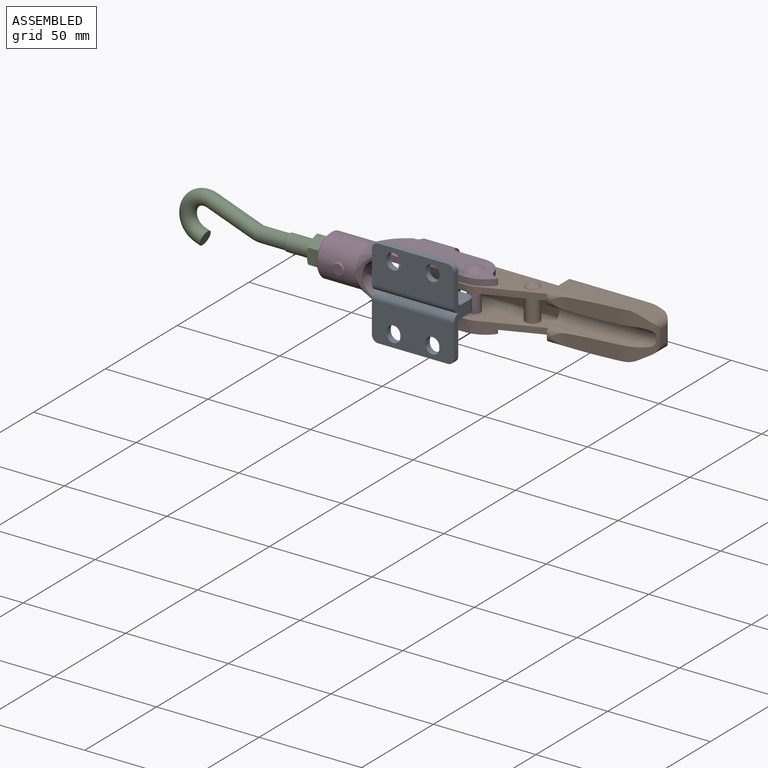
[diagram: assembled view]
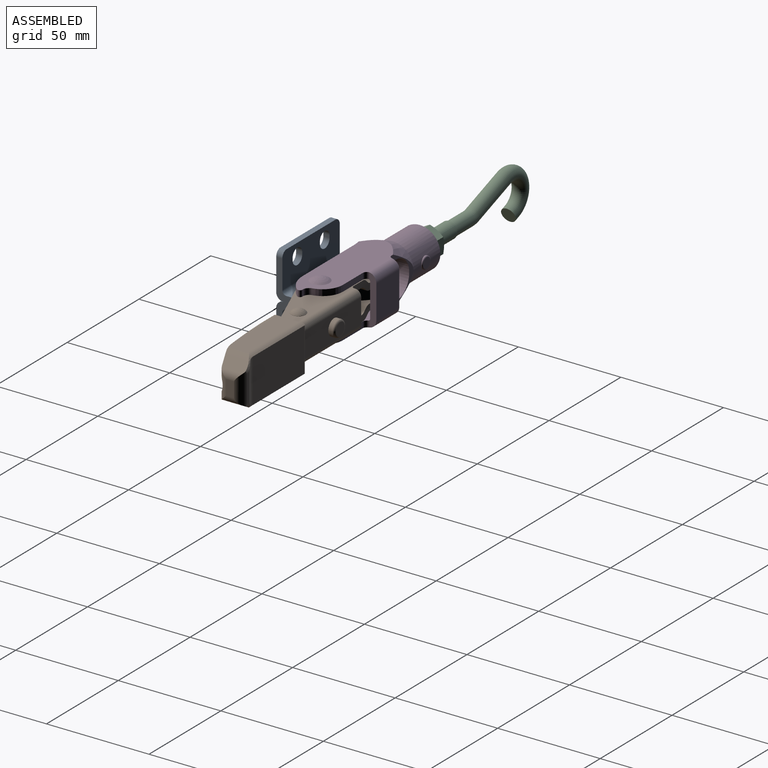
[diagram: assembled view, second angle]
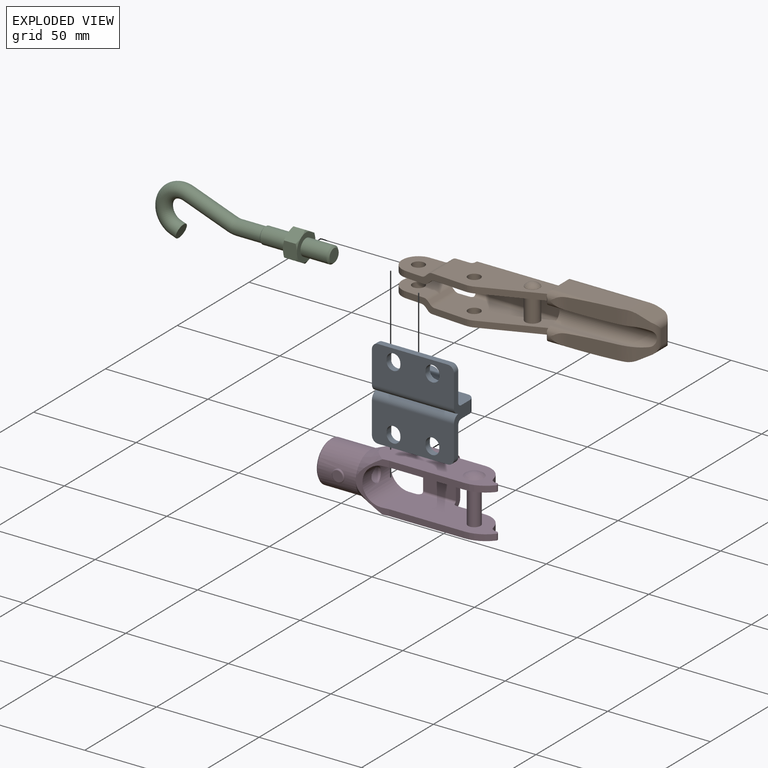
[diagram: exploded view]
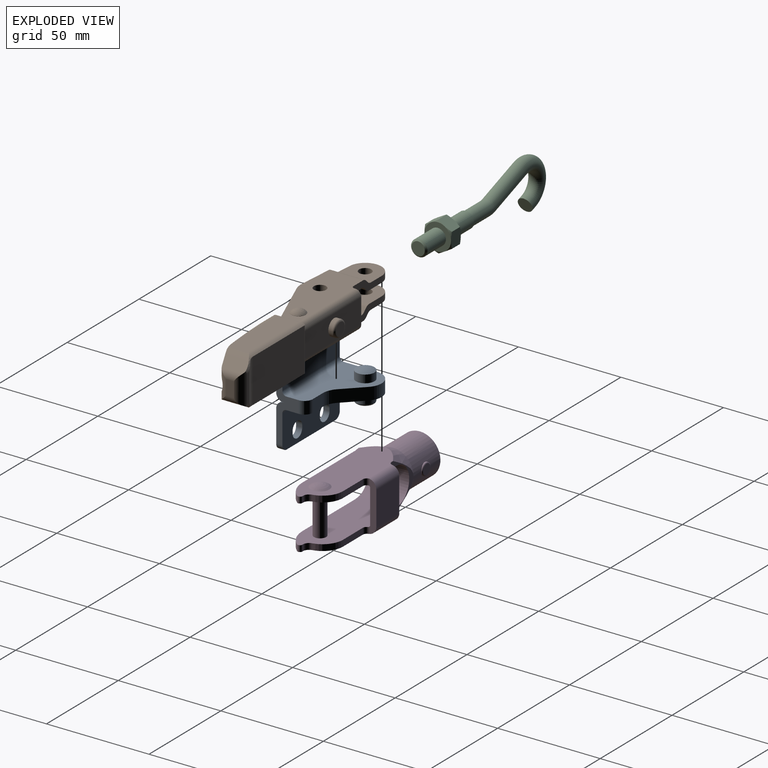
[diagram: exploded view, second angle]
ASSEMBLY  parts=4 mates=3
PART A: 44 faces, bbox 40x29x44 mm
  f0: plane 7x7mm, normal (0,0,-1), area 38.5mm2, adj f1
  f1: torus R=3.5mm, axis (0,0,1), area 40.8mm2, adj f0,f2
  f2: cylinder r=4.5mm len=9mm, axis (0,0,-1), area 93.3mm2, adj f1,f27
  f3: plane 34x3mm, normal (0,0,1), area 102mm2, adj f10,f22,f40,f41
  f4: plane 34x3mm, normal (0,0,-1), area 102mm2, adj f12,f25,f42,f43
  f5: plane 9.02x9.02mm, normal (0.71,0.71,0), area 76.5mm2, adj f6,f13,f20,f27
  f6: cylinder r=9mm len=6.36mm, axis (0,0,1), area 42.4mm2, adj f5,f7,f20,f27
  f7: plane 6.96x6mm, normal (0,1,0), area 41.8mm2, adj f6,f8,f20,f27
  f8: cylinder r=4mm len=6mm, axis (0,0,1), area 37.7mm2, adj f7,f9,f20,f27
  f9: plane 38x11mm, normal (1,0,0), area 158.5mm2, adj f8,f10,f12,f20,f21,f22,f23,f24
  f10: plane 40x18.5mm, normal (0,-1,0), area 652.2mm2, adj f3,f9,f11,f23,f28,f29,f30,f31
  f11: plane 38x21mm, normal (-1,0,0), area 218.5mm2, adj f10,f12,f13,f20,f21,f22,f23,f24
  f12: plane 40x18.5mm, normal (0,-1,0), area 652.2mm2, adj f4,f9,f11,f14,f15,f16,f17,f24
  f13: cylinder r=8mm len=13.66mm, axis (0,0,1), area 113.1mm2, adj f5,f11,f20,f27
  f14: plane 3x1mm, normal (-1,0,0), area 3mm2, adj f12,f15,f16,f25
  f15: cylinder r=3.35mm len=6.7mm, axis (0,1,0), area 31.6mm2, adj f12,f14,f17,f25
  f16: cylinder r=3.35mm len=6.7mm, axis (0,1,0), area 31.6mm2, adj f12,f14,f17,f25
  f17: plane 3x1mm, normal (1,0,0), area 3mm2, adj f12,f15,f16,f25
  f18: revolved ~9x9mm, area 67.8mm2, adj f19
  f19: cylinder r=4.5mm len=9mm, axis (0,0,-1), area 108.9mm2, adj f18,f20
  f20: plane 40x24mm, normal (0,0,1), area 576mm2, adj f5,f6,f7,f8,f9,f11,f13,f19
  f21: cylinder r=2mm len=40mm, axis (1,0,0), area 125.7mm2, adj f9,f11,f20,f22
  f22: plane 40x17mm, normal (0,1,0), area 592.2mm2, adj f3,f9,f11,f21,f28,f29,f30,f31
  f23: cylinder r=3.5mm len=40mm, axis (1,0,0), area 219.9mm2, adj f9,f10,f11,f24
  f24: cylinder r=3.5mm len=40mm, axis (1,0,0), area 219.9mm2, adj f9,f11,f12,f23
  f25: plane 40x17mm, normal (0,1,0), area 592.2mm2, adj f4,f9,f11,f14,f15,f16,f17,f26
  f26: cylinder r=2mm len=40mm, axis (1,0,0), area 125.7mm2, adj f9,f11,f25,f27
  f27: plane 40x24mm, normal (0,0,-1), area 576mm2, adj f2,f5,f6,f7,f8,f9,f11,f13
  f28: cylinder r=3.35mm len=6.7mm, axis (0,1,0), area 31.6mm2, adj f10,f22,f30,f32
  f29: plane 3x1mm, normal (1,0,0), area 3mm2, adj f10,f22,f37,f39
  f30: plane 3x1mm, normal (-1,0,0), area 3mm2, adj f10,f22,f28,f31
  f31: cylinder r=3.35mm len=6.7mm, axis (0,1,0), area 31.6mm2, adj f10,f22,f30,f32
  f32: plane 3x1mm, normal (1,0,0), area 3mm2, adj f10,f22,f28,f31
  f33: cylinder r=3.35mm len=6.7mm, axis (0,1,0), area 31.6mm2, adj f12,f25,f34,f36
  f34: plane 3x1mm, normal (-1,0,0), area 3mm2, adj f12,f25,f33,f35
  f35: cylinder r=3.35mm len=6.7mm, axis (0,1,0), area 31.6mm2, adj f12,f25,f34,f36
  f36: plane 3x1mm, normal (1,0,0), area 3mm2, adj f12,f25,f33,f35
  f37: cylinder r=3.35mm len=6.7mm, axis (0,1,0), area 31.6mm2, adj f10,f22,f29,f38
  f38: plane 3x1mm, normal (-1,0,0), area 3mm2, adj f10,f22,f37,f39
  f39: cylinder r=3.35mm len=6.7mm, axis (0,1,0), area 31.6mm2, adj f10,f22,f29,f38
  f40: cylinder r=3mm len=3mm, axis (0,1,0), area 14.1mm2, adj f3,f10,f11,f22
  f41: cylinder r=3mm len=3mm, axis (0,1,0), area 14.1mm2, adj f3,f9,f10,f22
  f42: cylinder r=3mm len=3mm, axis (0,1,0), area 14.1mm2, adj f4,f9,f12,f25
  f43: cylinder r=3mm len=3mm, axis (0,1,0), area 14.1mm2, adj f4,f11,f12,f25
PART B: 93 faces, bbox 123.2x31.7x27 mm
  f0: cylinder r=1.5mm len=42.77mm, axis (-1,0,0), area 99.8mm2, adj f1,f16,f37,f63,f65
  f1: plane 44.2x18.45mm, normal (0,0,-1), area 553.4mm2, adj f0,f16,f20,f30,f44,f56,f62,f65
  f2: cylinder r=5mm len=44.76mm, axis (1,0,0), area 119.7mm2, adj f3,f41,f66,f67,f68,f69,f70,f71
  f3: cylinder r=10mm len=13.12mm, axis (0,1,0), area 55.1mm2, adj f2,f41,f71,f73,f75
  f4: cylinder r=26.55mm len=7.73mm, axis (0,0,1), area 53.8mm2, adj f5,f23,f40,f74,f77,f81
  f5: cylinder r=4.5mm len=47.47mm, axis (1,0,0), area 634.4mm2, adj f4,f6,f65,f73,f74,f75,f80,f81
  f6: cylinder r=4.51mm len=15.14mm, axis (0,0,1), area 42.4mm2, adj f5,f7,f21,f22,f71,f72,f73,f74
  f7: cylinder r=4mm len=10.25mm, axis (0,1,0), area 30mm2, adj f6,f22,f70,f72
  f8: cylinder r=3.5mm len=30.01mm, axis (1,0,0), area 108.7mm2, adj f9,f11,f41,f65,f76,f79,f80,f89
  f9: cylinder r=20mm len=5.8mm, axis (0,0,1), area 22.3mm2, adj f8,f76,f79
  f10: cylinder r=3.5mm len=30.01mm, axis (1,0,0), area 108.7mm2, adj f24,f38,f39,f40,f65,f77,f78,f81
  f11: cylinder r=1mm len=4.85mm, axis (0,0,1), area 0mm2, adj f8,f65
  f12: plane 29.02x11.63mm, normal (0.37,-0.93,0), area 93.8mm2, adj f13,f35,f46,f65
  f13: cylinder r=10mm len=4.46mm, axis (0,0,1), area 13.6mm2, adj f12,f14,f35,f46
  f14: plane 30.33x6.01mm, normal (-0.07,-1,0), area 94.8mm2, adj f13,f15,f35,f45,f46,f47,f48,f49
  f15: cylinder r=7.94mm len=15.86mm, axis (0,0,1), area 72.3mm2, adj f14,f18,f50,f51
  f16: cylinder r=1.5mm len=3.56mm, axis (0,0,1), area 7.4mm2, adj f0,f1,f20,f63,f64
  f17: cylinder r=7.94mm len=15.86mm, axis (0,0,1), area 72.3mm2, adj f20,f85,f86,f91
  f18: plane 19.76x6mm, normal (0,1,0), area 62.9mm2, adj f15,f19,f35,f45,f46,f47,f48,f49
  f19: cylinder r=1.5mm len=3.56mm, axis (0,0,1), area 7.4mm2, adj f18,f35,f36,f46,f63
  f20: plane 19.76x6mm, normal (0,1,0), area 62.9mm2, adj f1,f16,f17,f56,f57,f58,f59,f60
  f21: cylinder r=4mm len=10.25mm, axis (0,1,0), area 30mm2, adj f6,f22,f70,f71
  f22: plane 7.12x4.02mm, normal (1,0,0), area 28.6mm2, adj f6,f7,f21,f70
  f23: cylinder r=10mm len=13.12mm, axis (0,1,0), area 55.1mm2, adj f4,f40,f72,f74,f83
  f24: cylinder r=1mm len=15.19mm, axis (0,1,0), area 20.6mm2, adj f10,f40,f65,f66,f83
  f25: torus R=3mm, axis (0,-1,0), area 35.9mm2, adj f26,f27
  f26: cylinder r=4mm len=8mm, axis (0,1,0), area 51.1mm2, adj f25,f33
  f27: plane 6x6mm, normal (0,1,0), area 28.3mm2, adj f25
  f28: plane 7x7mm, normal (0,0,-1), area 38.5mm2, adj f29
  f29: cone r=5.05mm half-angle=48deg, axis (0,0,1), area 21.6mm2, adj f28,f46
  f30: cylinder r=3.5mm len=12mm, axis (0,0,1), area 263.9mm2, adj f1,f35
  f31: sphere r=4.42mm, area 47.8mm2, adj f92
  f32: cylinder r=3mm len=42.21mm, axis (-1,0,0), area 198.9mm2, adj f33,f63,f64,f65
  f33: plane 42.21x12mm, normal (0,1,0), area 456.2mm2, adj f26,f32,f34,f63,f65
  f34: cylinder r=3mm len=42.21mm, axis (-1,0,0), area 198.9mm2, adj f33,f46,f63,f65
  f35: plane 44.2x18.45mm, normal (0,0,1), area 553.4mm2, adj f12,f13,f14,f18,f19,f30,f36,f43
  f36: cylinder r=1.5mm len=42.77mm, axis (-1,0,0), area 99.8mm2, adj f19,f35,f37,f63,f65
  f37: plane 42.21x9mm, normal (0,-1,0), area 379.9mm2, adj f0,f36,f63,f65
  f38: cylinder r=1mm len=4.85mm, axis (0,0,1), area 0mm2, adj f10,f65
  f39: cylinder r=10.11mm len=3.87mm, axis (0,0,1), area 6.3mm2, adj f10,f78
  f40: plane 34.6x10.5mm, normal (0,0,-1), area 361.5mm2, adj f4,f10,f23,f24,f77,f83
  f41: plane 34.6x10.5mm, normal (0,0,1), area 361.5mm2, adj f2,f3,f8,f75,f76,f89
  f42: cylinder r=3mm len=6mm, axis (0,0,1), area 56.5mm2, adj f50,f51
  f43: cylinder r=3mm len=6mm, axis (0,0,1), area 56.5mm2, adj f35,f46
  f44: cylinder r=3mm len=6mm, axis (0,0,1), area 56.5mm2, adj f1,f64
  f45: cylinder r=2mm len=17.3mm, axis (0,1,0), area 0.2mm2, adj f14,f18,f35,f55
  f46: plane 50.31x19.95mm, normal (0,0,-1), area 705.3mm2, adj f12,f13,f14,f18,f19,f29,f34,f43
  f47: cylinder r=3mm len=16.85mm, axis (0,1,0), area 38.4mm2, adj f14,f18,f46,f48
  f48: plane 16.7x1.4mm, normal (-0.69,0,-0.72), area 32.3mm2, adj f14,f18,f47,f49
  f49: cylinder r=3mm len=16.59mm, axis (0,1,0), area 37.8mm2, adj f14,f18,f48,f50
  f50: plane 16.44x15.29mm, normal (0,0,-1), area 189.7mm2, adj f14,f15,f18,f42,f49
  f51: plane 16.53x16.5mm, normal (0,0,1), area 209.5mm2, adj f14,f15,f18,f42,f52
  f52: cylinder r=3mm len=16.68mm, axis (0,1,0), area 38mm2, adj f14,f18,f51,f53
  f53: plane 16.79x1.4mm, normal (0.69,0,0.72), area 32.5mm2, adj f14,f18,f52,f54
  f54: cylinder r=3mm len=16.94mm, axis (0,1,0), area 38.6mm2, adj f14,f18,f53,f55
  f55: plane 17.3x4.9mm, normal (0,0,1), area 83.9mm2, adj f14,f18,f45,f54
  f56: cylinder r=2mm len=17.3mm, axis (0,1,0), area 0.2mm2, adj f1,f20,f57,f91
  f57: plane 17.3x4.9mm, normal (0,0,-1), area 83.9mm2, adj f20,f56,f58,f91
  f58: cylinder r=3mm len=16.94mm, axis (0,1,0), area 38.6mm2, adj f20,f57,f59,f91
  f59: plane 16.79x1.4mm, normal (0.69,0,-0.72), area 32.5mm2, adj f20,f58,f60,f91
  f60: cylinder r=3mm len=16.68mm, axis (0,1,0), area 38mm2, adj f20,f59,f85,f91
  f61: cylinder r=3mm len=16.85mm, axis (0,1,0), area 38.4mm2, adj f20,f64,f87,f91
  f62: plane 29.02x11.63mm, normal (0.37,-0.93,0), area 93.8mm2, adj f1,f64,f65,f90
  f63: plane 18x3.33mm, normal (-1,0,0), area 52.7mm2, adj f0,f16,f19,f32,f33,f34,f36,f37
  f64: plane 50.31x19.95mm, normal (0,0,1), area 721.3mm2, adj f16,f20,f32,f44,f61,f62,f63,f65
  f65: plane 25x18.8mm, normal (-1,0,0), area 144.3mm2, adj f0,f1,f5,f8,f10,f11,f12,f24
  f66: cylinder r=1mm len=21.94mm, axis (0,0,1), area 33.9mm2, adj f2,f24,f65,f67,f83,f89
  f67: plane 35.82x21.32mm, normal (0,1,0), area 763.6mm2, adj f2,f66,f68,f83
  f68: cylinder r=6mm len=21.32mm, axis (0,0,1), area 79.9mm2, adj f2,f67,f69,f83
  f69: cylinder r=4.8mm len=18.88mm, axis (0,0,1), area 38.5mm2, adj f2,f68,f82,f83
  f70: cylinder r=4.8mm len=15.44mm, axis (0,0,1), area 66mm2, adj f2,f7,f21,f22,f71,f72,f82,f83
  f71: plane 13.33x5.89mm, normal (0.5,0,0.87), area 72.7mm2, adj f2,f3,f6,f21,f70,f73
  f72: plane 13.33x5.89mm, normal (0.5,0,-0.87), area 72.7mm2, adj f6,f7,f23,f70,f74,f83
  f73: plane 7.06x5.46mm, normal (0.34,-0.94,0), area 27.2mm2, adj f3,f5,f6,f71,f75
  f74: plane 7.06x5.46mm, normal (0.34,-0.94,0), area 27.2mm2, adj f4,f5,f6,f23,f72
  f75: cylinder r=26.55mm len=7.73mm, axis (0,0,1), area 53.8mm2, adj f3,f5,f41,f73,f76,f80
  f76: plane 22.88x7mm, normal (0.09,-1,0), area 152.9mm2, adj f8,f9,f41,f75,f80
  f77: plane 22.88x7mm, normal (0.09,-1,0), area 152.9mm2, adj f4,f10,f40,f78,f81
  f78: cylinder r=20mm len=5.8mm, axis (0,0,1), area 22.3mm2, adj f10,f39,f77
  f79: cylinder r=10.11mm len=3.87mm, axis (0,0,1), area 6.3mm2, adj f8,f9
  f80: plane 38.18x1.5mm, normal (0,0,-1), area 52.7mm2, adj f5,f8,f65,f75,f76
  f81: plane 38.18x1.5mm, normal (0,0,1), area 52.7mm2, adj f4,f5,f10,f65,f77
  f82: plane 13x1.52mm, normal (0,1,0), area 19.8mm2, adj f2,f69,f70,f83
  f83: cylinder r=5mm len=44.76mm, axis (1,0,0), area 119.7mm2, adj f23,f24,f40,f66,f67,f68,f69,f70
  f84: cylinder r=3mm len=6mm, axis (0,0,1), area 56.5mm2, adj f85,f86
  f85: plane 16.53x16.5mm, normal (0,0,-1), area 209.5mm2, adj f17,f20,f60,f84,f91
  f86: plane 16.44x15.29mm, normal (0,0,1), area 189.7mm2, adj f17,f20,f84,f88,f91
  f87: plane 16.7x1.4mm, normal (-0.69,0,0.72), area 32.3mm2, adj f20,f61,f88,f91
  f88: cylinder r=3mm len=16.59mm, axis (0,1,0), area 37.8mm2, adj f20,f86,f87,f91
  f89: cylinder r=1mm len=15.19mm, axis (0,1,0), area 20.6mm2, adj f2,f8,f41,f65,f66
  f90: cylinder r=10mm len=4.46mm, axis (0,0,1), area 13.6mm2, adj f1,f62,f64,f91
  f91: plane 30.33x6.01mm, normal (-0.07,-1,0), area 94.8mm2, adj f1,f17,f56,f57,f58,f59,f60,f61
  f92: cylinder r=3.5mm len=7mm, axis (0,0,1), area 2.2mm2, adj f31,f64
PART C: 31 faces, bbox 88x26.7x15.6 mm
  f0: plane 8.12x7.42mm, normal (0,0,-1), area 48mm2, adj f1,f5,f8,f11,f20,f21
  f1: plane 7.42x7.12mm, normal (0,-0.87,-0.5), area 48mm2, adj f0,f2,f8,f10,f16,f21
  f2: cone r=8.64mm half-angle=60deg, axis (-1,0,0), area 4.2mm2, adj f1,f16,f18
  f3: plane 8.12x7.42mm, normal (0,0,1), area 48.1mm2, adj f4,f6,f16,f19,f23,f30
  f4: plane 7.42x7.12mm, normal (0,0.87,0.5), area 48.1mm2, adj f3,f5,f6,f7,f17,f19
  f5: plane 7.42x7.12mm, normal (0,0.87,-0.5), area 48.1mm2, adj f0,f4,f7,f11,f17,f20
  f6: cone r=6.5mm half-angle=60deg, axis (1,0,0), area 4.2mm2, adj f3,f4,f15
  f7: cone r=6.5mm half-angle=60deg, axis (1,0,0), area 4.2mm2, adj f4,f5,f15
  f8: cone r=6.5mm half-angle=60deg, axis (1,0,0), area 4.2mm2, adj f0,f1,f15
  f9: cylinder r=4mm len=12.83mm, axis (-1,0,0), area 322.5mm2, adj f12,f15
  f10: cone r=6.5mm half-angle=60deg, axis (1,0,0), area 4.2mm2, adj f1,f15,f16
  f11: cone r=6.5mm half-angle=60deg, axis (1,0,0), area 4.2mm2, adj f0,f5,f15
  f12: cone r=3.23mm half-angle=45deg, axis (1,0,0), area 15.2mm2, adj f9,f29
  f13: cone r=4mm half-angle=45deg, axis (-1,0,0), area 24.6mm2, adj f14,f22
  f14: plane 6.47x6.47mm, normal (1,0,0), area 32.8mm2, adj f13
  f15: plane 13x13mm, normal (-1,0,0), area 82.5mm2, adj f6,f7,f8,f9,f10,f11,f30
  f16: plane 7.42x7.12mm, normal (0,-0.87,0.5), area 48.1mm2, adj f1,f2,f3,f10,f23,f30
  f17: cone r=8.64mm half-angle=60deg, axis (-1,0,0), area 4.2mm2, adj f4,f5,f18
  f18: plane 13x13mm, normal (1,0,0), area 82.5mm2, adj f2,f17,f19,f20,f21,f22,f23
  f19: cone r=8.64mm half-angle=60deg, axis (-1,0,0), area 4.2mm2, adj f3,f4,f18
  f20: cone r=8.64mm half-angle=60deg, axis (-1,0,0), area 4.2mm2, adj f0,f5,f18
  f21: cone r=8.64mm half-angle=60deg, axis (-1,0,0), area 4.2mm2, adj f0,f1,f18
  f22: cylinder r=4mm len=12.83mm, axis (-1,0,0), area 322.5mm2, adj f13,f18
  f23: cone r=8.64mm half-angle=60deg, axis (-1,0,0), area 4.2mm2, adj f3,f16,f18
  f24: torus R=8.87mm, axis (0,0,1), area 68.7mm2, adj f25,f29
  f25: cylinder r=3.53mm len=24.05mm, axis (0.94,-0.34,0), area 511.1mm2, adj f24,f26
  f26: torus R=8.87mm, axis (0,0,-1), area 618.4mm2, adj f25,f28
  f27: plane 7.07x6.64mm, normal (0.94,-0.34,0), area 39.2mm2, adj f28
  f28: cylinder r=3.53mm len=7.55mm, axis (0.94,-0.34,0), area 59.2mm2, adj f26,f27
  f29: cylinder r=3.53mm len=12.66mm, axis (1,0,0), area 280.1mm2, adj f12,f24
  f30: cone r=6.5mm half-angle=60deg, axis (1,0,0), area 4.2mm2, adj f3,f15,f16
PART D: 55 faces, bbox 83.4x32.1x32.1 mm
  f0: cone r=3.32mm half-angle=45deg, axis (1,0,0), area 0mm2, adj f1,f54
  f1: cylinder r=3.32mm len=22.54mm, axis (-1,0,0), area 452.7mm2, adj f0,f2,f50,f51,f52,f53,f54
  f2: plane 6.68x0.4mm, normal (1,0,0), area 2.7mm2, adj f1,f3,f51,f54
  f3: plane 24.4x15.3mm, normal (0,1,0), area 55.1mm2, adj f2,f4,f28,f30,f42,f43,f46,f47
  f4: cylinder r=2mm len=3.4mm, axis (0,0,1), area 9.6mm2, adj f3,f5,f26,f27,f28,f49
  f5: cylinder r=4mm len=16.33mm, axis (1,0,0), area 100.7mm2, adj f4,f6,f24,f25,f26,f28
  f6: plane 16.4x16mm, normal (0,1,0), area 262.4mm2, adj f5,f7,f24,f26
  f7: cylinder r=4mm len=16.33mm, axis (1,0,0), area 100.7mm2, adj f6,f8,f24,f26,f43,f46
  f8: cylinder r=2mm len=3.4mm, axis (0,0,1), area 9.6mm2, adj f7,f9,f11,f24,f43,f47
  f9: cylinder r=1mm len=16.33mm, axis (1,0,0), area 25.3mm2, adj f8,f10,f24,f26,f46,f47
  f10: plane 16.4x16mm, normal (0,-1,0), area 262.4mm2, adj f9,f24,f26,f27
  f11: plane 13.72x3mm, normal (0,1,0), area 41.2mm2, adj f8,f12,f43,f47
  f12: cylinder r=10mm len=9.84mm, axis (0,0,1), area 41.7mm2, adj f11,f13,f43,f47
  f13: cylinder r=3mm len=3.23mm, axis (0,0,1), area 13.2mm2, adj f12,f14,f43,f47
  f14: cylinder r=1.2mm len=3mm, axis (0,0,1), area 8.5mm2, adj f13,f15,f43,f47
  f15: cylinder r=15mm len=11.55mm, axis (0,0,1), area 39.6mm2, adj f14,f16,f43,f47
  f16: plane 36.77x3mm, normal (0,-1,0), area 110.3mm2, adj f15,f17,f43,f47
  f17: plane 24.91x15.31mm, normal (0.13,-0.99,0), area 77.9mm2, adj f16,f18,f28,f30,f42,f43,f47,f49
  f18: plane 36.77x3mm, normal (0,-1,0), area 110.3mm2, adj f17,f19,f28,f49
  f19: cylinder r=15mm len=11.55mm, axis (0,0,1), area 39.6mm2, adj f18,f20,f28,f49
  f20: cylinder r=1.2mm len=3mm, axis (0,0,1), area 8.5mm2, adj f19,f21,f28,f49
  f21: cylinder r=3mm len=3.23mm, axis (0,0,1), area 13.2mm2, adj f20,f22,f28,f49
  f22: cylinder r=10mm len=9.84mm, axis (0,0,1), area 41.7mm2, adj f21,f23,f28,f49
  f23: plane 13.72x3mm, normal (0,1,0), area 41.2mm2, adj f22,f25,f28,f49
  f24: plane 24.24x3.2mm, normal (1,0,0), area 67.8mm2, adj f5,f6,f7,f8,f9,f10,f25,f27
  f25: cylinder r=2mm len=3.4mm, axis (0,0,1), area 9.6mm2, adj f5,f23,f24,f27,f28,f49
  f26: plane 24.24x3.2mm, normal (-1,0,0), area 67.8mm2, adj f4,f5,f6,f7,f9,f10,f27,f46
  f27: cylinder r=1mm len=16.33mm, axis (1,0,0), area 25.3mm2, adj f4,f10,f24,f25,f26,f49
  f28: plane 57.99x19.6mm, normal (0,0,1), area 864mm2, adj f3,f4,f5,f17,f18,f19,f20,f21
  f29: sphere r=7.8mm, area 73.5mm2, adj f28
  f30: cone r=10mm half-angle=22.1deg, axis (1,0,0), area 213mm2, adj f3,f17,f28,f31
  f31: cylinder r=10mm len=20mm, axis (-1,0,0), area 1121.1mm2, adj f30,f32,f34,f35,f36,f37,f39,f40
  f32: torus R=2.5mm, axis (0,-1,0), area 13.9mm2, adj f31,f33,f34,f35
  f33: plane 5x5mm, normal (0,1,0), area 19.6mm2, adj f32
  f34: cylinder r=3mm len=3mm, axis (0,1,0), area 0mm2, adj f31,f32
  f35: cylinder r=3mm len=6mm, axis (0,1,0), area 0mm2, adj f31,f32
  f36: cylinder r=3mm len=3mm, axis (0,1,0), area 0mm2, adj f31,f37
  f37: torus R=2.5mm, axis (0,-1,0), area 13.9mm2, adj f31,f36,f38,f39
  f38: plane 5x5mm, normal (0,-1,0), area 19.6mm2, adj f37
  f39: cylinder r=3mm len=6mm, axis (0,1,0), area 0mm2, adj f31,f37
  f40: cone r=9.25mm half-angle=45deg, axis (1,0,0), area 64.1mm2, adj f31,f41
  f41: plane 18.5x18.5mm, normal (-1,0,0), area 218.5mm2, adj f40,f53
  f42: cone r=10mm half-angle=22.1deg, axis (1,0,0), area 213mm2, adj f3,f17,f31,f43
  f43: plane 57.99x19.6mm, normal (0,0,-1), area 883.8mm2, adj f3,f7,f8,f11,f12,f13,f14,f15
  f44: torus R=0.88mm, axis (0,0,1), area 41mm2, adj f43,f45
  f45: plane 3.52x3.52mm, normal (0,0,-1), area 9.7mm2, adj f44
  f46: cylinder r=2mm len=3.4mm, axis (0,0,1), area 9.6mm2, adj f3,f7,f9,f26,f43,f47
  f47: plane 51.4x19.58mm, normal (0,0,1), area 830.8mm2, adj f3,f8,f9,f11,f12,f13,f14,f15
  f48: cylinder r=3mm len=18.4mm, axis (0,0,-1), area 346.8mm2, adj f47,f49
  f49: plane 51.4x19.58mm, normal (0,0,-1), area 830.8mm2, adj f3,f4,f17,f18,f19,f20,f21,f22
  f50: cone r=3.32mm half-angle=45deg, axis (1,0,0), area 0mm2, adj f1,f51
  f51: cylinder r=9mm len=19.59mm, axis (0,1,0), area 252mm2, adj f1,f2,f3,f17,f49,f50,f52
  f52: plane 6.28x0.4mm, normal (1,0,0), area 2.5mm2, adj f1,f17,f51,f54
  f53: cone r=4mm half-angle=45deg, axis (-1,0,0), area 22mm2, adj f1,f41
  f54: cylinder r=9mm len=19.59mm, axis (0,1,0), area 252.9mm2, adj f0,f1,f2,f3,f17,f47,f52
PLACE A at identity
PLACE B t=(8,21,0)mm
PLACE C rot(axis=(1,0,0),90deg) t=(-95.6,19,0.2)mm
PLACE D t=(36.6,19,0.2)mm
MATE fastened B.f42 <-> A.f1  axis (0,0,1) through (8,21,-3)mm
MATE fastened C.f2 <-> D.f0  axis (-1,0,0) through (-33.7,19,0.2)mm
MATE fastened D.f48 <-> B.f43  axis (0,0,1) through (36.6,19,-9)mm
